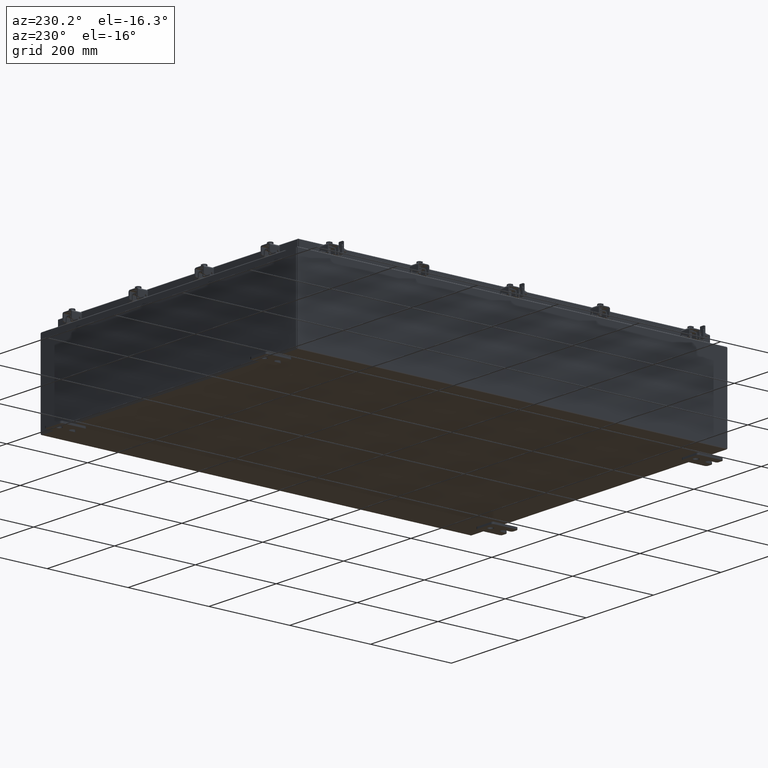
[diagram: clean part render]
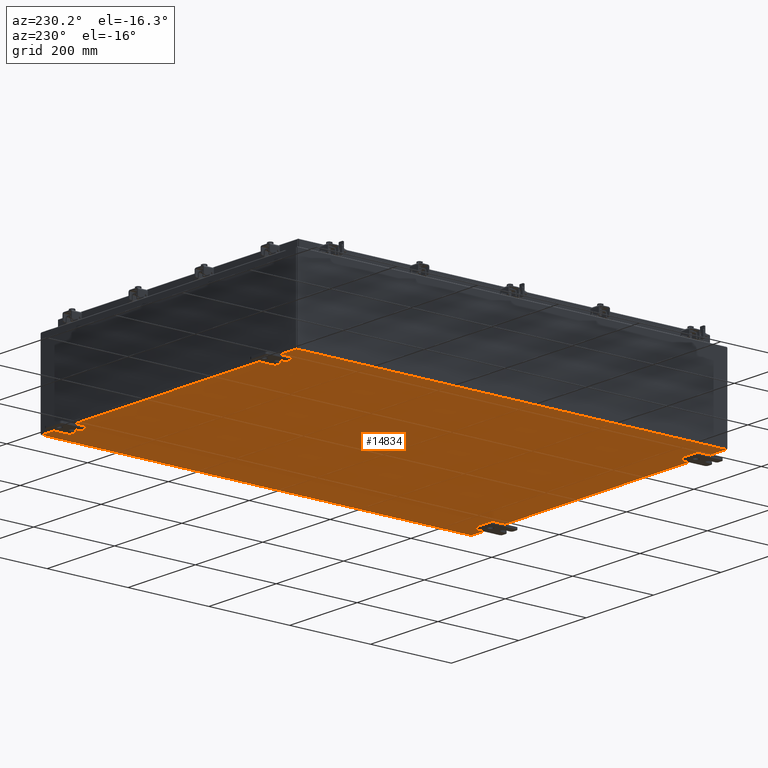
[diagram: same view with one face highlighted and labeled with its STEP entity id]
A machine part, auxiliary view. The second image highlights one B-rep face of the part: STEP entity #14834.
In plain terms, the highlighted planar face has unit normal (0, 0, -1).
Its self-contained STEP definition (entity closure, byte-faithful):
#79 = EDGE_LOOP ( 'NONE', ( #16635, #7957, #18882, #2728 ) ) ;
#253 = PLANE ( 'NONE',  #3591 ) ;
#382 = EDGE_CURVE ( 'NONE', #18719, #11324, #6129, .T. ) ;
#1469 = VECTOR ( 'NONE', #23211, 39.37007874015748100 ) ;
#1548 = EDGE_CURVE ( 'NONE', #10116, #15667, #15610, .T. ) ;
#2163 = DIRECTION ( 'NONE',  ( -1.000000000000000000, 0.0000000000000000000, -0.0000000000000000000 ) ) ;
#2576 = FACE_OUTER_BOUND ( 'NONE', #79, .T. ) ;
#2728 = ORIENTED_EDGE ( 'NONE', *, *, #24493, .T. ) ;
#3591 = AXIS2_PLACEMENT_3D ( 'NONE', #9540, #13514, #2163 ) ;
#4138 = CARTESIAN_POINT ( 'NONE',  ( -14.99999999999999800, -20.92529999999999300, -0.07469999999999998900 ) ) ;
#6129 = LINE ( 'NONE', #6313, #11186 ) ;
#6313 = CARTESIAN_POINT ( 'NONE',  ( -14.99999999999999800, 20.92530000000000700, -0.07469999999999998900 ) ) ;
#7927 = DIRECTION ( 'NONE',  ( 1.000000000000000000, -1.456985596620940400E-016, 0.0000000000000000000 ) ) ;
#7957 = ORIENTED_EDGE ( 'NONE', *, *, #23393, .T. ) ;
#8160 = CARTESIAN_POINT ( 'NONE',  ( 14.91230000000000200, 20.92529999999999300, -0.07469999999999713000 ) ) ;
#9540 = CARTESIAN_POINT ( 'NONE',  ( 0.0000000000000000000, 0.0000000000000000000, -0.07469999999999998900 ) ) ;
#10116 = VERTEX_POINT ( 'NONE', #16364 ) ;
#11137 = VECTOR ( 'NONE', #7927, 39.37007874015748100 ) ;
#11186 = VECTOR ( 'NONE', #19639, 39.37007874015748100 ) ;
#11324 = VERTEX_POINT ( 'NONE', #23858 ) ;
#11595 = VECTOR ( 'NONE', #13552, 39.37007874015748100 ) ;
#12142 = LINE ( 'NONE', #15647, #1469 ) ;
#13514 = DIRECTION ( 'NONE',  ( 0.0000000000000000000, 0.0000000000000000000, -1.000000000000000000 ) ) ;
#13552 = DIRECTION ( 'NONE',  ( -0.0000000000000000000, 1.000000000000000000, -0.0000000000000000000 ) ) ;
#14834 = ADVANCED_FACE ( 'NONE', ( #2576 ), #253, .T. ) ;
#15564 = CARTESIAN_POINT ( 'NONE',  ( 14.91230000000000200, -20.92529999999999600, -0.07469999999999998900 ) ) ;
#15610 = LINE ( 'NONE', #4138, #11137 ) ;
#15647 = CARTESIAN_POINT ( 'NONE',  ( 14.91230000000000200, 20.92529999999999600, -0.07469999999999713000 ) ) ;
#15667 = VERTEX_POINT ( 'NONE', #15564 ) ;
#16364 = CARTESIAN_POINT ( 'NONE',  ( -14.91229999999999800, -20.92529999999998600, -0.07469999999999996100 ) ) ;
#16635 = ORIENTED_EDGE ( 'NONE', *, *, #1548, .F. ) ;
#17285 = LINE ( 'NONE', #23028, #11595 ) ;
#18719 = VERTEX_POINT ( 'NONE', #8160 ) ;
#18882 = ORIENTED_EDGE ( 'NONE', *, *, #382, .F. ) ;
#19639 = DIRECTION ( 'NONE',  ( -1.000000000000000000, -0.0000000000000000000, -0.0000000000000000000 ) ) ;
#23028 = CARTESIAN_POINT ( 'NONE',  ( -14.91229999999999800, -20.92529999999998900, -0.07469999999999996100 ) ) ;
#23211 = DIRECTION ( 'NONE',  ( -0.0000000000000000000, -1.000000000000000000, -8.208677865577646300E-017 ) ) ;
#23393 = EDGE_CURVE ( 'NONE', #10116, #11324, #17285, .T. ) ;
#23858 = CARTESIAN_POINT ( 'NONE',  ( -14.91229999999999800, 20.92530000000000700, -0.07469999999999998900 ) ) ;
#24493 = EDGE_CURVE ( 'NONE', #18719, #15667, #12142, .T. ) ;